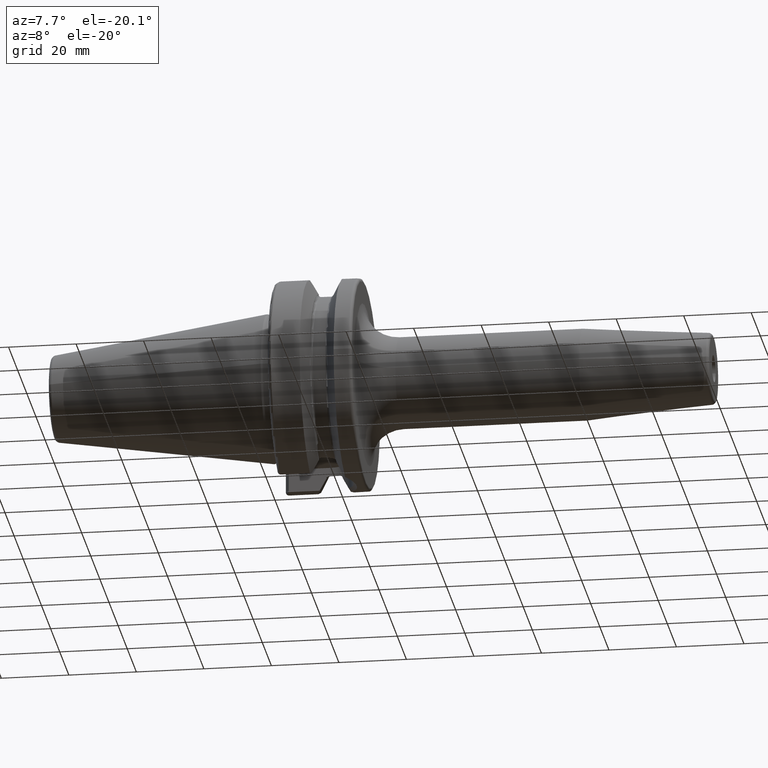
[diagram: clean part render]
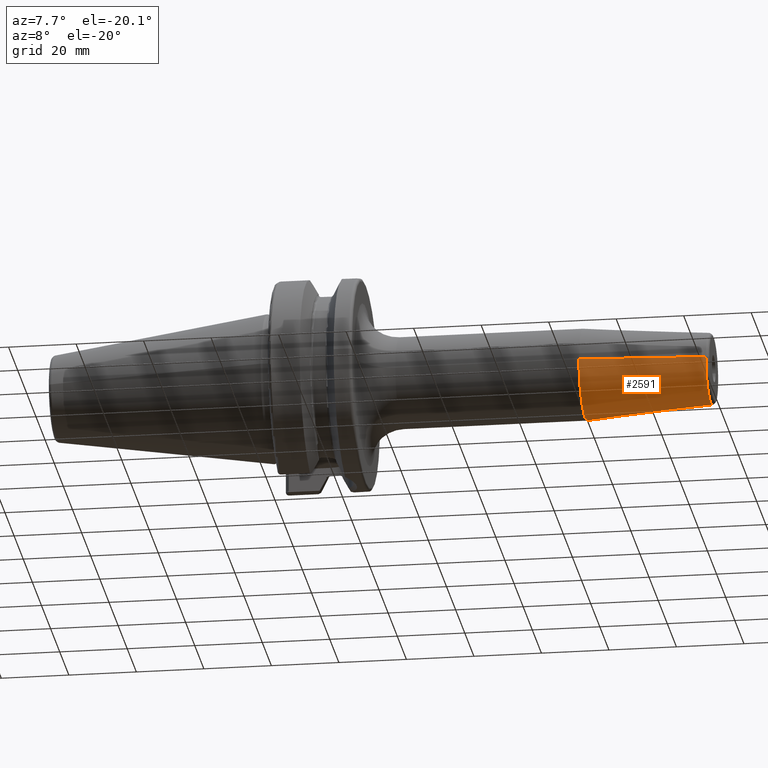
[diagram: same view with one face highlighted and labeled with its STEP entity id]
A machine part, auxiliary view. The second image highlights one B-rep face of the part: STEP entity #2591.
In plain terms, the highlighted conical surface has half-angle 4.5 deg.
Its self-contained STEP definition (entity closure, byte-faithful):
#875=CARTESIAN_POINT('',(9.188138579148E1,0.E0,0.E0));
#876=DIRECTION('',(-1.E0,0.E0,0.E0));
#877=DIRECTION('',(0.E0,1.E0,0.E0));
#878=AXIS2_PLACEMENT_3D('',#875,#876,#877);
#884=CARTESIAN_POINT('',(1.290784590957E2,0.E0,0.E0));
#885=DIRECTION('',(-1.E0,0.E0,0.E0));
#886=DIRECTION('',(0.E0,1.E0,0.E0));
#887=AXIS2_PLACEMENT_3D('',#884,#885,#886);
#889=DIRECTION('',(-9.969173337331E-1,7.845909572785E-2,2.126719434918E-13));
#890=VECTOR('',#889,3.731209403789E1);
#891=CARTESIAN_POINT('',(1.290784590957E2,1.057252684207E1,
-7.933582281608E-12));
#892=LINE('',#891,#890);
#893=DIRECTION('',(-9.969173337331E-1,-7.845909572785E-2,-2.126634542501E-13));
#894=VECTOR('',#893,3.731209403789E1);
#895=CARTESIAN_POINT('',(1.290784590957E2,-1.057252684207E1,
7.933265530223E-12));
#896=LINE('',#895,#894);
#1409=CARTESIAN_POINT('',(9.188138579148E1,1.35E1,0.E0));
#1410=VERTEX_POINT('',#1409);
#1411=CARTESIAN_POINT('',(9.188138579148E1,-1.35E1,0.E0));
#1412=VERTEX_POINT('',#1411);
#1413=CARTESIAN_POINT('',(1.290784590957E2,1.057252684207E1,0.E0));
#1414=CARTESIAN_POINT('',(1.290784590957E2,-1.057252684207E1,0.E0));
#1415=VERTEX_POINT('',#1413);
#1416=VERTEX_POINT('',#1414);
#2577=CARTESIAN_POINT('',(1.104799224436E2,0.E0,0.E0));
#2578=DIRECTION('',(-1.E0,0.E0,0.E0));
#2579=DIRECTION('',(0.E0,1.E0,0.E0));
#2580=AXIS2_PLACEMENT_3D('',#2577,#2578,#2579);
#2581=CONICAL_SURFACE('',#2580,1.203626342104E1,4.5E0);
#2583=ORIENTED_EDGE('',*,*,#2582,.F.);
#2585=ORIENTED_EDGE('',*,*,#2584,.T.);
#2586=ORIENTED_EDGE('',*,*,#2571,.T.);
#2588=ORIENTED_EDGE('',*,*,#2587,.F.);
#2589=EDGE_LOOP('',(#2583,#2585,#2586,#2588));
#2590=FACE_OUTER_BOUND('',#2589,.F.);
#2591=ADVANCED_FACE('',(#2590),#2581,.T.);
#879=CIRCLE('',#878,1.35E1);
#888=CIRCLE('',#887,1.057252684207E1);
#2571=EDGE_CURVE('',#1410,#1412,#879,.T.);
#2582=EDGE_CURVE('',#1415,#1416,#888,.T.);
#2584=EDGE_CURVE('',#1415,#1410,#892,.T.);
#2587=EDGE_CURVE('',#1416,#1412,#896,.T.);